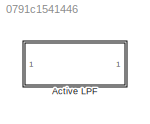
MODEL slx_0791c1541446
KIND model
CONFIG AbsTol = auto
CONFIG EnableMultiTasking = off
CONFIG FixedStep = auto
CONFIG MaxStep = auto
CONFIG MinStep = auto
CONFIG RelTol = 1e-3
CONFIG SampleTimeConstraint = Unconstrained
CONFIG SolverName = VariableStepAuto
CONFIG StartTime = 0.0
CONFIG StopTime = 50
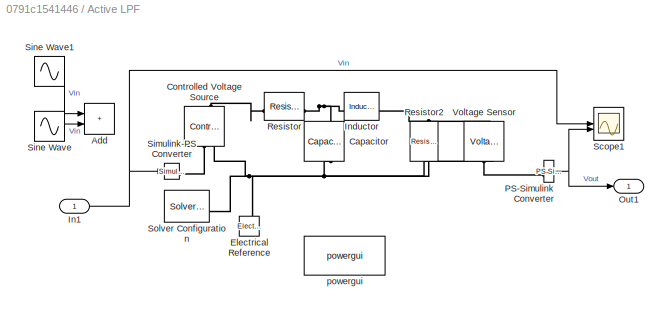
BLOCK [SubSystem] Active LPF
BLOCK [Sum] Active LPF/Add
  IconShape = rectangular
BLOCK [Reference] Active LPF/Capacitor  REF=ee_lib/Passive/Capacitor
  NameLocation = left
  SourceBlock = ee_lib/Passive/Capacitor
  SourceType = Capacitor
BLOCK [Reference] Active LPF/Controlled Voltage Source  REF=fl_lib/Electrical/Electrical Sources/Controlled Voltage
Source
  NameLocation = right
  SourceBlock = fl_lib/Electrical/Electrical Sources/Controlled Voltage\nSource
  SourceType = Controlled Voltage\nSource
BLOCK [Reference] Active LPF/Electrical Reference  REF=fl_lib/Electrical/Electrical Elements/Electrical Reference
  LibrarySourceBlock = ee_lib/Connectors &\nReferences/Electrical Reference
  NameLocation = right
  SourceBlock = fl_lib/Electrical/Electrical Elements/Electrical Reference
  SourceType = Electrical Reference
BLOCK [Inport] Active LPF/In1
BLOCK [Reference] Active LPF/Inductor  REF=ee_lib/Passive/Inductor
  SourceBlock = ee_lib/Passive/Inductor
  SourceType = Inductor
BLOCK [Outport] Active LPF/Out1
BLOCK [Reference] Active LPF/PS-Simulink Converter  REF=nesl_utility/PS-Simulink
Converter
  SourceBlock = nesl_utility/PS-Simulink\nConverter
  SourceType = PS-Simulink\nConverter
BLOCK [Reference] Active LPF/Resistor  REF=ee_lib/Passive/Resistor
  SourceBlock = ee_lib/Passive/Resistor
  SourceType = Resistor
BLOCK [Reference] Active LPF/Resistor2  REF=ee_lib/Passive/Resistor
  NameLocation = left
  SourceBlock = ee_lib/Passive/Resistor
  SourceType = Resistor
BLOCK [Scope] Active LPF/Scope1
  Floating = off
  NumInputPorts = 2
  ScopeSpecificationString = Simulink.scopes.TimeScopeBlockCfg('CurrentConfiguration', extmgr.ConfigurationSet(extmgr.Configuration('Core','General UI',true),extmgr.Configuration('Core','Source UI',true),extmgr.Configuration('Sources','WiredSimulink',true,'DataLoggingVariableName','ScopeData2'),extmgr.Configuration('Visuals','Time Domain',true,'SerializedDisplays',{struct('MinYLimReal','-5.01583','MaxYLimReal','45.0166','YLab...<+2254ch>
BLOCK [Reference] Active LPF/Simulink-PS Converter  REF=nesl_utility/Simulink-PS
Converter
  SourceBlock = nesl_utility/Simulink-PS\nConverter
  SourceType = Simulink-PS\nConverter
BLOCK [Sin] Active LPF/Sine Wave
  Amplitude = 20
  Bias = 20
  Frequency = 0.5
  SampleTime = 0
BLOCK [Sin] Active LPF/Sine Wave1
  Amplitude = 30*0.0005
  Frequency = 10000*2*pi
  SampleTime = 0
BLOCK [Reference] Active LPF/Solver Configuration  REF=nesl_utility/Solver
Configuration
  SourceBlock = nesl_utility/Solver\nConfiguration
  SourceType = Solver\nConfiguration
BLOCK [Reference] Active LPF/Voltage Sensor  REF=fl_lib/Electrical/Electrical Sensors/Voltage Sensor
  NameLocation = right
  SourceBlock = fl_lib/Electrical/Electrical Sensors/Voltage Sensor
  SourceType = Voltage Sensor
BLOCK [Reference] Active LPF/powergui  REF=spspowerguiLib/powergui
  LibrarySourceBlock = sps_lib/powergui
  Priority = 1
  SourceBlock = spspowerguiLib/powergui
  SourceType = PSB option menu block
NET Active LPF/In1:1 -> Active LPF/Scope1:1, Active LPF/Simulink-PS Converter:1
NET Active LPF/PS-Simulink Converter:1 -> Active LPF/Out1:1, Active LPF/Scope1:2
LINE Active LPF/Sine Wave1:1 -> Active LPF/Add:1
LINE Active LPF/Sine Wave:1 -> Active LPF/Add:2
PNET net1: Active LPF/Capacitor:LConn1 -- Active LPF/Inductor:LConn1 -- Active LPF/Resistor:RConn1
PNET net2: Active LPF/Capacitor:RConn1 -- Active LPF/Controlled Voltage Source:RConn2 -- Active LPF/Electrical Reference:LConn1 -- Active LPF/Resistor2:RConn1 -- Active LPF/Solver Configuration:RConn1 -- Active LPF/Voltage Sensor:RConn2
PLINE Active LPF/Controlled Voltage Source:LConn1 -- Active LPF/Resistor:LConn1
PLINE Active LPF/Controlled Voltage Source:RConn1 -- Active LPF/Simulink-PS Converter:RConn1
PNET net3: Active LPF/Inductor:RConn1 -- Active LPF/Resistor2:LConn1 -- Active LPF/Voltage Sensor:LConn1
PLINE Active LPF/PS-Simulink Converter:LConn1 -- Active LPF/Voltage Sensor:RConn1
note: NET lines group one-source signal fan-out (src -> all destinations, sorted); 1:1 wires keep LINE; PNET lines group multi-terminal physical nets as a canonical sorted terminal list (undirected conserving connections); 2-terminal nets keep the pairwise PLINE form
